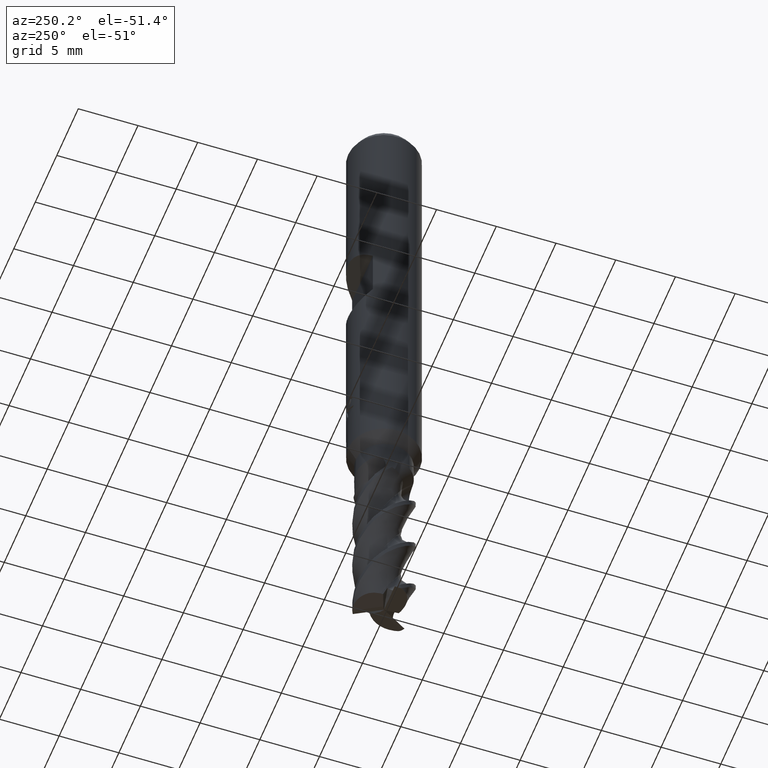
[diagram: clean part render]
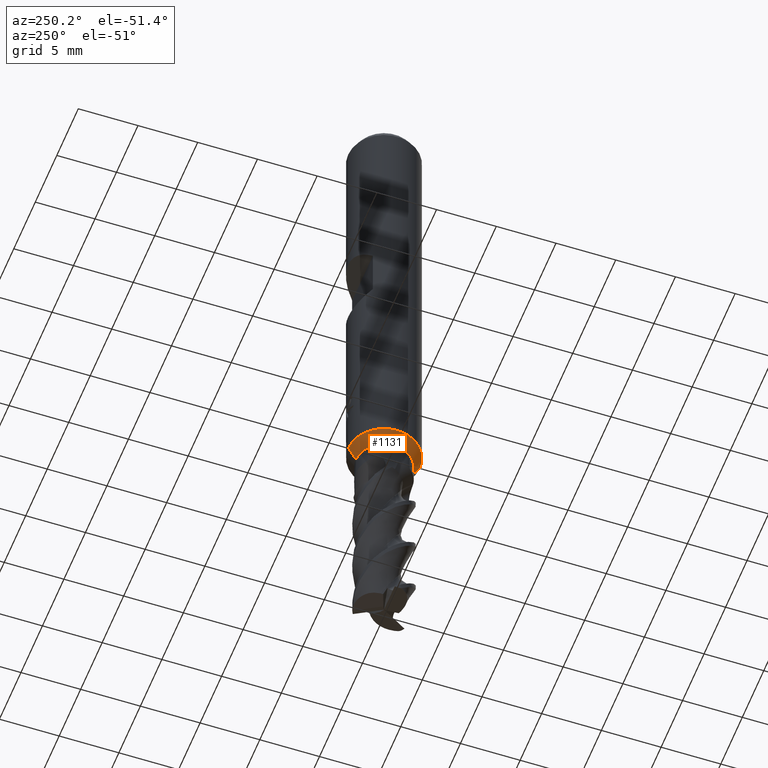
[diagram: same view with one face highlighted and labeled with its STEP entity id]
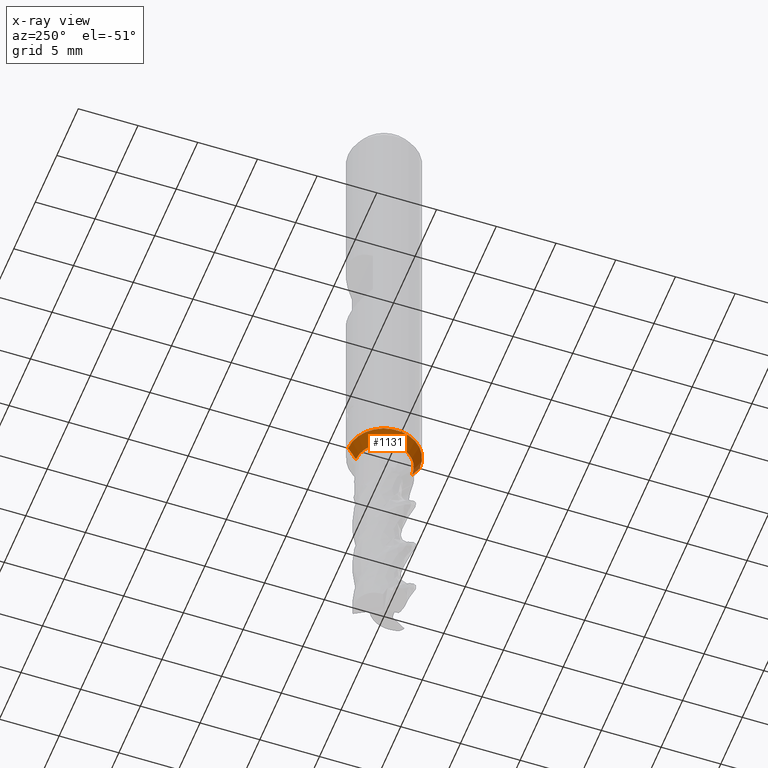
[diagram: x-ray of the same camera — body ghosted, the highlighted face saturated]
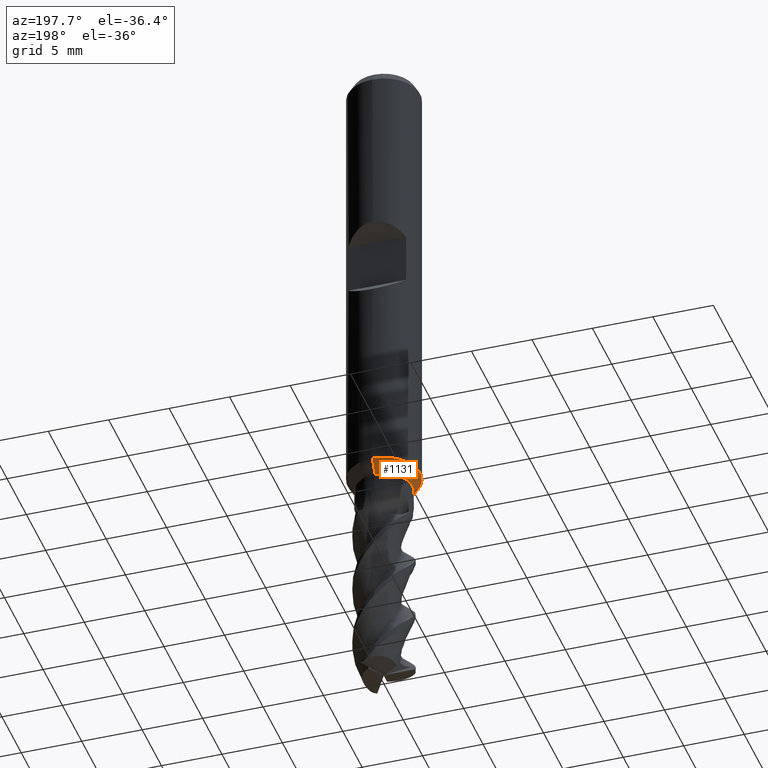
[diagram: same view with one face highlighted and labeled with its STEP entity id]
A machine part, auxiliary view. The second image highlights one B-rep face of the part: STEP entity #1131.
The next image is the same camera in x-ray: the body ghosted, the highlighted face saturated — about 0% of this face is hidden behind the body in this view.
A second angle (auxiliary view) of the same face is appended — the face is thin or edge-on in the first view.
In plain terms, the highlighted conical surface has half-angle 29.996 deg.
Its self-contained STEP definition (entity closure, byte-faithful):
#515=EDGE_CURVE('',#839,#803,#1434,.T.);
#795=EDGE_CURVE('',#803,#1091,#1749,.T.);
#803=VERTEX_POINT('',#1758);
#839=VERTEX_POINT('',#1795);
#843=EDGE_CURVE('',#1091,#1115,#1799,.T.);
#1019=EDGE_CURVE('',#839,#1115,#1986,.T.);
#1091=VERTEX_POINT('',#2062);
#1115=VERTEX_POINT('',#2087);
#1131=ADVANCED_FACE('',(#2103),#2104,.T.);
#1434=LINE('',#3487,#3488);
#1749=CIRCLE('',#6026,2.99995);
#1758=CARTESIAN_POINT('',(3.67375783114944E-016,-2.99995,-37.874));
#1795=CARTESIAN_POINT('',(2.8777637011649E-016,-2.34995,-39.0));
#1799=LINE('',#6110,#6111);
#1986=CIRCLE('',#7382,2.34995);
#2062=CARTESIAN_POINT('',(0.0,2.99995,-37.874));
#2087=CARTESIAN_POINT('',(0.0,2.34995,-39.0));
#2103=FACE_OUTER_BOUND('',#8311,.T.);
#2104=CONICAL_SURFACE('',#8312,2.67495,0.523534561556491);
#3487=CARTESIAN_POINT('',(3.27576076615717E-016,-2.67495,-38.437));
#3488=VECTOR('',#10422,1.0);
#6026=AXIS2_PLACEMENT_3D('',#10795,#10796,#10797);
#6110=CARTESIAN_POINT('',(-3.27576076615717E-016,2.67495,-38.437));
#6111=VECTOR('',#10825,1.0);
#7382=AXIS2_PLACEMENT_3D('',#10988,#10989,#10990);
#8311=EDGE_LOOP('',(#11063,#11064,#11065,#11066));
#8312=AXIS2_PLACEMENT_3D('',#11067,#11068,#11069);
#10422=DIRECTION('',(6.12235074075321E-017,-0.499944387977691,0.866057509019818));
#10795=CARTESIAN_POINT('',(0.0,0.0,-37.874));
#10796=DIRECTION('',(0.0,0.0,-1.0));
#10797=DIRECTION('',(0.0,1.0,0.0));
#10825=DIRECTION('',(6.12235074075321E-017,-0.499944387977691,-0.866057509019818));
#10988=CARTESIAN_POINT('',(0.0,0.0,-39.0));
#10989=DIRECTION('',(0.0,0.0,-1.0));
#10990=DIRECTION('',(0.0,1.0,0.0));
#11063=ORIENTED_EDGE('',*,*,#843,.T.);
#11064=ORIENTED_EDGE('',*,*,#1019,.F.);
#11065=ORIENTED_EDGE('',*,*,#515,.T.);
#11066=ORIENTED_EDGE('',*,*,#795,.T.);
#11067=CARTESIAN_POINT('',(0.0,0.0,-38.437));
#11068=DIRECTION('',(-0.0,-0.0,1.0));
#11069=DIRECTION('',(0.0,1.0,0.0));